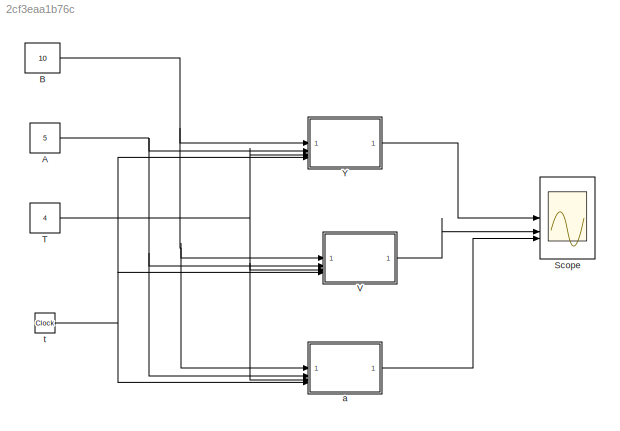
MODEL slx_2cf3eaa1b76c
KIND model
CONFIG AbsTol = auto
CONFIG EnableMultiTasking = off
CONFIG FixedStep = 1e-3
CONFIG MaxStep = auto
CONFIG MinStep = auto
CONFIG RelTol = 1e-3
CONFIG SampleTimeConstraint = Unconstrained
CONFIG SolverName = FixedStepAuto
CONFIG StartTime = 0
CONFIG StopTime = 10.0
BLOCK [Constant] A
  Value = 5
BLOCK [Constant] B
  Value = 10
BLOCK [Scope] Scope
  Floating = off
  NumInputPorts = 3
  ScopeSpecificationString = Simulink.scopes.TimeScopeBlockCfg('CurrentConfiguration', extmgr.ConfigurationSet(extmgr.Configuration('Core','General UI',true,'FigureColor',[0.992156862745098 0.917647058823529 0.796078431372549]),extmgr.Configuration('Core','Source UI',true),extmgr.Configuration('Sources','WiredSimulink',true),extmgr.Configuration('Visuals','Time Domain',true,'SerializedDisplays',{struct('MinYLimReal','-15.7541...<+2445ch>
BLOCK [Constant] T
  Value = 4
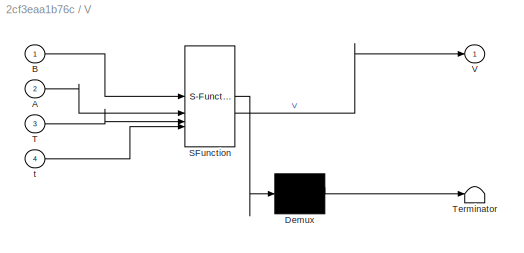
BLOCK [SubSystem] V
  ErrorFcn = Stateflow.Translate.translate
  PermitHierarchicalResolution = ExplicitOnly
  SFBlockType = MATLAB Function
  TreatAsAtomicUnit = on
BLOCK [Demux] V/ Demux 
  Outputs = 1
BLOCK [S-Function] V/ SFunction 
  EnableBusSupport = on
  FunctionName = sf_sfun
  PortCounts = [4 2]
  SFcnIsStateOwnerBlock = off
  SFunctionDeploymentMode = off
  Tag = Stateflow S-Function 1
BLOCK [Terminator] V/ Terminator 
BLOCK [Inport] V/A
  Port = 2
BLOCK [Inport] V/B
BLOCK [Inport] V/T
  Port = 3
BLOCK [Outport] V/V
BLOCK [Inport] V/t
  Port = 4
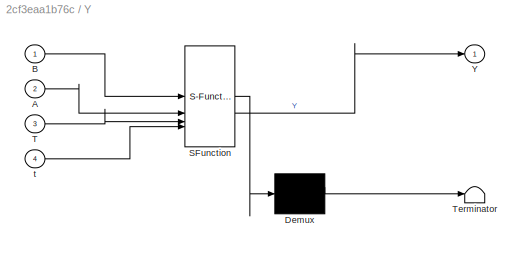
BLOCK [SubSystem] Y
  ErrorFcn = Stateflow.Translate.translate
  PermitHierarchicalResolution = ExplicitOnly
  SFBlockType = MATLAB Function
  TreatAsAtomicUnit = on
BLOCK [Demux] Y/ Demux 
  Outputs = 1
BLOCK [S-Function] Y/ SFunction 
  EnableBusSupport = on
  FunctionName = sf_sfun
  PortCounts = [4 2]
  SFcnIsStateOwnerBlock = off
  SFunctionDeploymentMode = off
  Tag = Stateflow S-Function 2
BLOCK [Terminator] Y/ Terminator 
BLOCK [Inport] Y/A
  Port = 2
BLOCK [Inport] Y/B
BLOCK [Inport] Y/T
  Port = 3
BLOCK [Outport] Y/Y
BLOCK [Inport] Y/t
  Port = 4
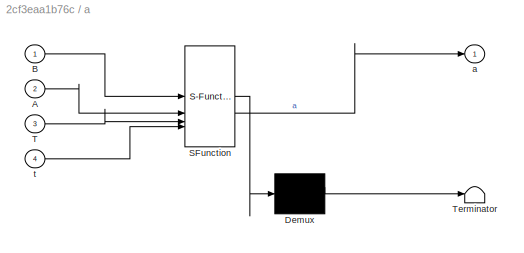
BLOCK [SubSystem] a
  ErrorFcn = Stateflow.Translate.translate
  PermitHierarchicalResolution = ExplicitOnly
  SFBlockType = MATLAB Function
  TreatAsAtomicUnit = on
BLOCK [Demux] a/ Demux 
  Outputs = 1
BLOCK [S-Function] a/ SFunction 
  EnableBusSupport = on
  FunctionName = sf_sfun
  PortCounts = [4 2]
  SFcnIsStateOwnerBlock = off
  SFunctionDeploymentMode = off
  Tag = Stateflow S-Function 3
BLOCK [Terminator] a/ Terminator 
BLOCK [Inport] a/A
  Port = 2
BLOCK [Inport] a/B
BLOCK [Inport] a/T
  Port = 3
BLOCK [Outport] a/a
BLOCK [Inport] a/t
  Port = 4
BLOCK [Clock] t
  Decimation = 18
NET A:1 -> V:2, Y:2, a:2
NET B:1 -> V:1, Y:1, a:1
NET T:1 -> V:3, Y:3, a:3
LINE V:1 -> Scope:2
LINE Y:1 -> Scope:1
LINE a:1 -> Scope:3
NET t:1 -> V:4, Y:4, a:4
note: NET lines group one-source signal fan-out (src -> all destinations, sorted); 1:1 wires keep LINE
CHART V states=1 transitions=1
  STATE_LABEL 'eML_blk_kernel()'
  STATE_LABEL 'SCRIPT:\nfunction V= fcn(B,A,T,t)\n\nV = 2*pi/T*A*cos(2*pi/T*t);\n'
CHART Y states=1 transitions=1
  STATE_LABEL 'eML_blk_kernel()'
  STATE_LABEL 'SCRIPT:\nfunction Y = fcn(B,A,T,t)\n\nY = B+A*sin(2*pi/T*t);\n'
CHART a states=1 transitions=1
  STATE_LABEL 'eML_blk_kernel()'
  STATE_LABEL 'SCRIPT:\nfunction  a= fcn(B,A,T,t)\n\na = 2*pi/T*2*pi/T*A*-1*sin(2*pi/T*t);\n'
CHART  states=0 transitions=0
CHART  states=0 transitions=0
CHART  states=0 transitions=0
